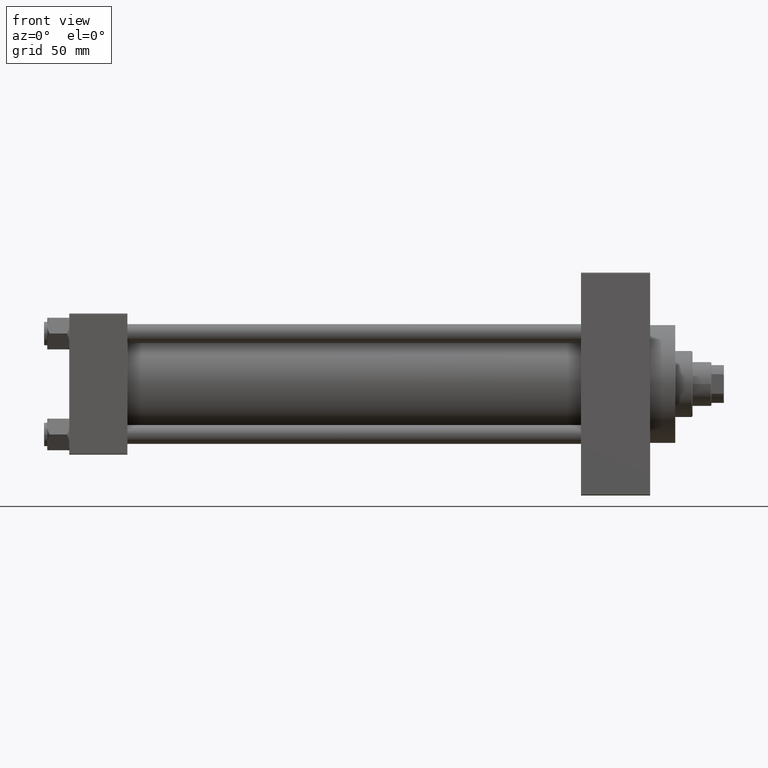
[diagram: clean part render]
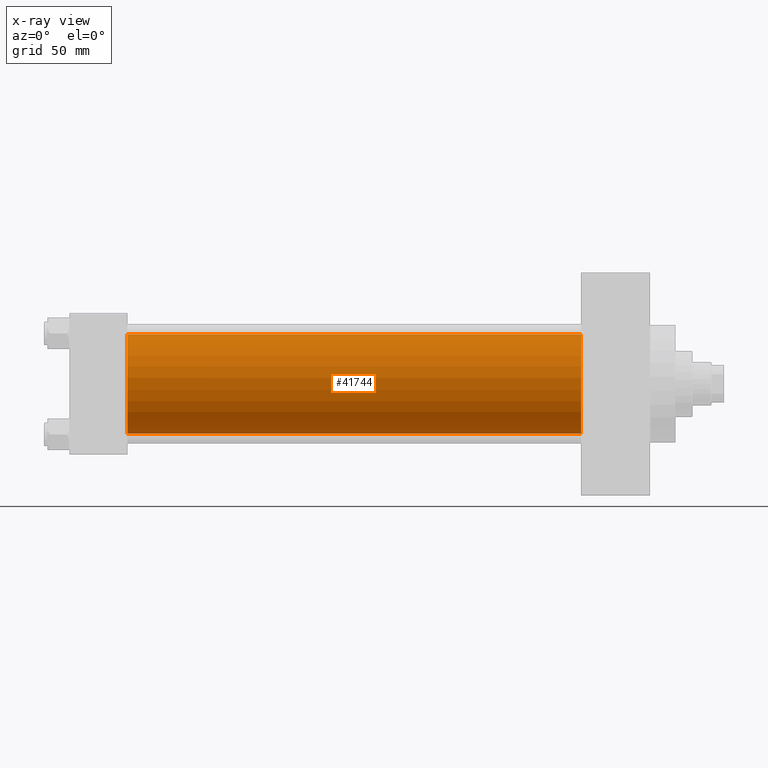
[diagram: x-ray — body ghosted, one internal face saturated and labeled with its STEP entity id]
A machine part, front view, then the same camera in x-ray: the body is ghosted and one INTERNAL B-rep face — a face not visible from any outside direction — is saturated and labeled: STEP entity #41744.
In plain terms, the highlighted cylindrical surface (partial cylindrical patch) has radius 31.5 mm, axis along (-1, -0, -0).
Its self-contained STEP definition (entity closure, byte-faithful):
#4800 = CYLINDRICAL_SURFACE ( 'NONE', #10230, 31.50000000000000000 ) ;
#6853 = VERTEX_POINT ( 'NONE', #8551 ) ;
#7258 = VERTEX_POINT ( 'NONE', #38160 ) ;
#7490 = ORIENTED_EDGE ( 'NONE', *, *, #7881, .T. ) ;
#7881 = EDGE_CURVE ( 'NONE', #6853, #49069, #17111, .T. ) ;
#8513 = LINE ( 'NONE', #34682, #34807 ) ;
#8551 = CARTESIAN_POINT ( 'NONE',  ( 325.9999999999999432, -2.602085213965210642E-15, 31.50000000000000000 ) ) ;
#8781 = CARTESIAN_POINT ( 'NONE',  ( 325.9999999999999432, -2.602085213965210642E-15, 0.000000000000000000 ) ) ;
#9979 = DIRECTION ( 'NONE',  ( 0.000000000000000000, 0.000000000000000000, -1.000000000000000000 ) ) ;
#10230 = AXIS2_PLACEMENT_3D ( 'NONE', #8781, #35181, #35936 ) ;
#12568 = AXIS2_PLACEMENT_3D ( 'NONE', #14930, #30122, #25209 ) ;
#13386 = EDGE_CURVE ( 'NONE', #36360, #7258, #46755, .T. ) ;
#14591 = CARTESIAN_POINT ( 'NONE',  ( 325.9999999999999432, 1.255552203348951850E-15, -31.50000000000000000 ) ) ;
#14930 = CARTESIAN_POINT ( 'NONE',  ( 37.00000000000000000, -2.602085213965210642E-15, 0.000000000000000000 ) ) ;
#15236 = EDGE_LOOP ( 'NONE', ( #7490, #41031, #20314, #24779 ) ) ;
#17111 = CIRCLE ( 'NONE', #36988, 31.50000000000000000 ) ;
#17228 = DIRECTION ( 'NONE',  ( 1.000000000000000000, 0.000000000000000000, 0.000000000000000000 ) ) ;
#17829 = VECTOR ( 'NONE', #29786, 1000.000000000000000 ) ;
#20314 = ORIENTED_EDGE ( 'NONE', *, *, #13386, .F. ) ;
#24779 = ORIENTED_EDGE ( 'NONE', *, *, #36298, .F. ) ;
#25209 = DIRECTION ( 'NONE',  ( 0.000000000000000000, 0.000000000000000000, -1.000000000000000000 ) ) ;
#25433 = CARTESIAN_POINT ( 'NONE',  ( 37.00000000000000000, -2.602085213965210642E-15, 31.50000000000000000 ) ) ;
#26552 = LINE ( 'NONE', #14591, #17829 ) ;
#27941 = EDGE_CURVE ( 'NONE', #49069, #7258, #26552, .T. ) ;
#29786 = DIRECTION ( 'NONE',  ( -1.000000000000000000, -0.000000000000000000, -0.000000000000000000 ) ) ;
#30122 = DIRECTION ( 'NONE',  ( 1.000000000000000000, 0.000000000000000000, 0.000000000000000000 ) ) ;
#34682 = CARTESIAN_POINT ( 'NONE',  ( 325.9999999999999432, -2.602085213965210642E-15, 31.50000000000000000 ) ) ;
#34807 = VECTOR ( 'NONE', #46155, 1000.000000000000000 ) ;
#35181 = DIRECTION ( 'NONE',  ( -1.000000000000000000, -0.000000000000000000, -0.000000000000000000 ) ) ;
#35936 = DIRECTION ( 'NONE',  ( 0.000000000000000000, 0.000000000000000000, 1.000000000000000000 ) ) ;
#36298 = EDGE_CURVE ( 'NONE', #6853, #36360, #8513, .T. ) ;
#36360 = VERTEX_POINT ( 'NONE', #25433 ) ;
#36988 = AXIS2_PLACEMENT_3D ( 'NONE', #40141, #17228, #9979 ) ;
#38160 = CARTESIAN_POINT ( 'NONE',  ( 37.00000000000000000, 1.255552203348951850E-15, -31.50000000000000000 ) ) ;
#40141 = CARTESIAN_POINT ( 'NONE',  ( 325.9999999999999432, -2.602085213965210642E-15, 0.000000000000000000 ) ) ;
#41031 = ORIENTED_EDGE ( 'NONE', *, *, #27941, .T. ) ;
#41744 = ADVANCED_FACE ( 'NONE', ( #43162 ), #4800, .F. ) ;
#43162 = FACE_OUTER_BOUND ( 'NONE', #15236, .T. ) ;
#44601 = CARTESIAN_POINT ( 'NONE',  ( 325.9999999999999432, 1.255552203348951850E-15, -31.50000000000000000 ) ) ;
#46155 = DIRECTION ( 'NONE',  ( -1.000000000000000000, -0.000000000000000000, -0.000000000000000000 ) ) ;
#46755 = CIRCLE ( 'NONE', #12568, 31.50000000000000000 ) ;
#49069 = VERTEX_POINT ( 'NONE', #44601 ) ;